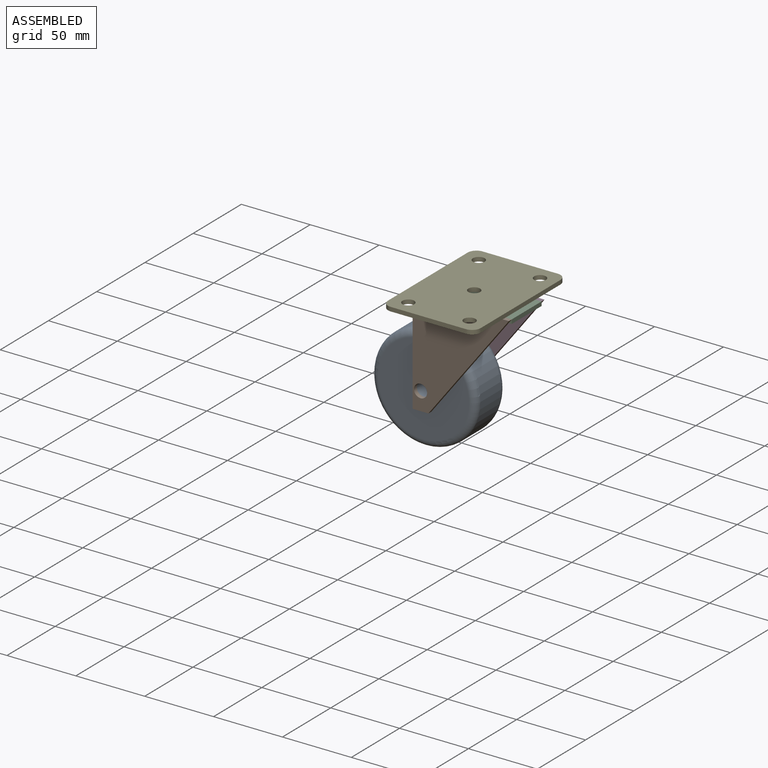
[diagram: assembled view]
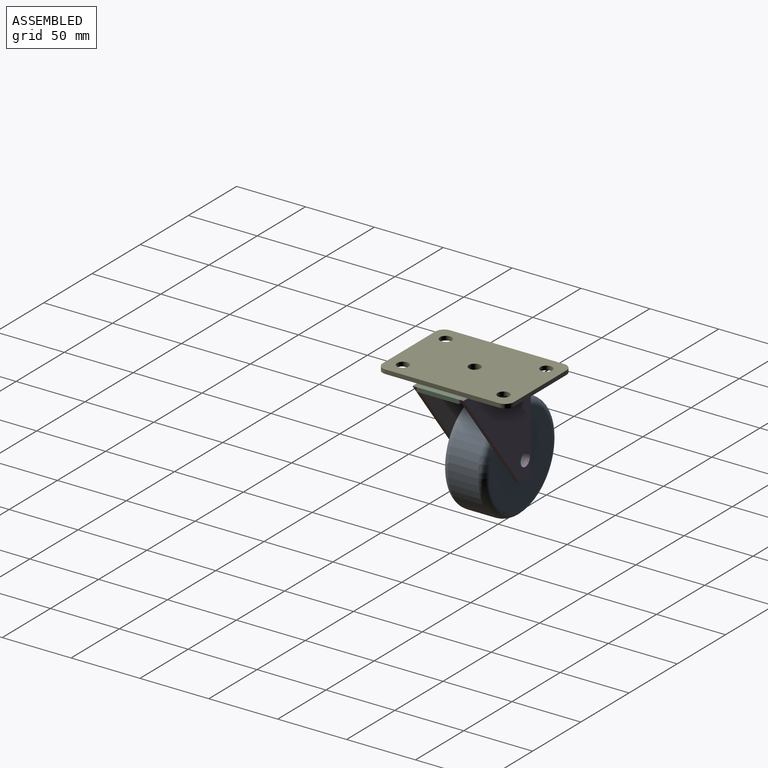
[diagram: assembled view, second angle]
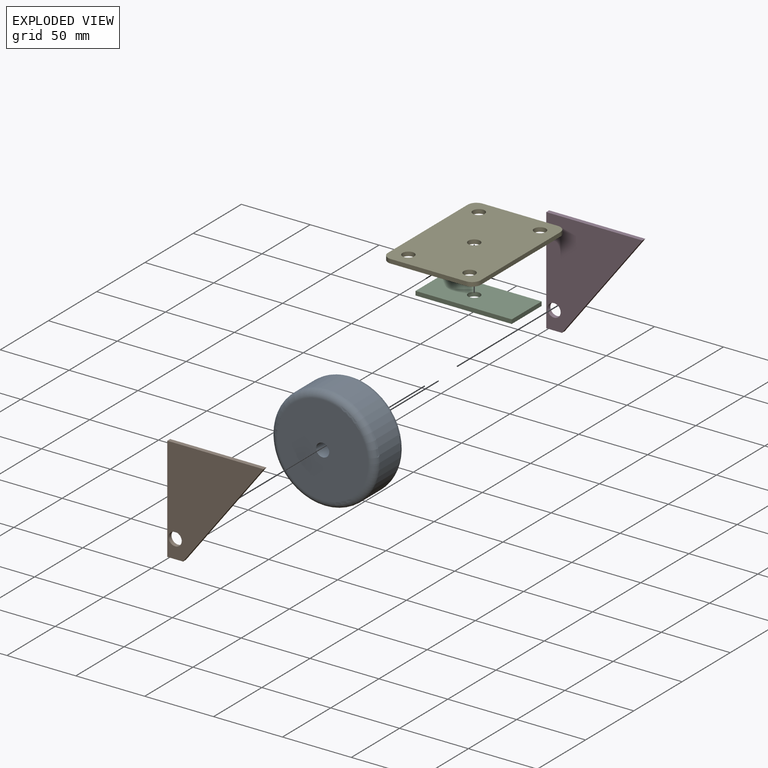
[diagram: exploded view]
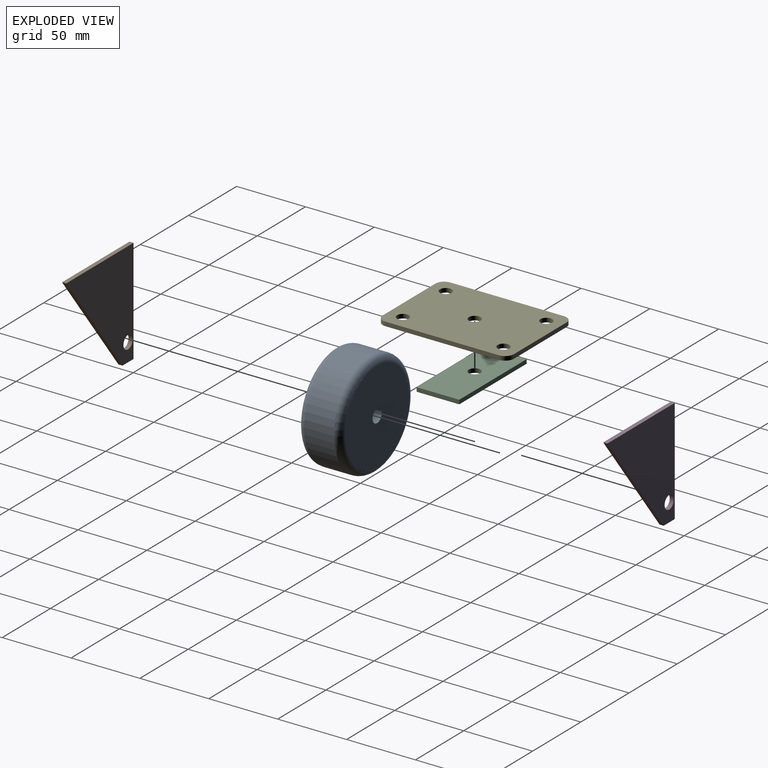
[diagram: exploded view, second angle]
ASSEMBLY  parts=5 mates=4
PART A: 6 faces, bbox 82.5x31x82.5 mm
  f0: cylinder r=38.1mm len=76.2mm, axis (0,1,0), area 4978.4mm2, adj f3,f4
  f1: plane 66.04x66.04mm, normal (0,-1,0), area 3354.1mm2, adj f3,f5
  f2: plane 66.04x66.04mm, normal (0,1,0), area 3354.1mm2, adj f4,f5
  f3: torus R=33.02mm, axis (0,-1,0), area 1817.7mm2, adj f0,f1
  f4: torus R=33.02mm, axis (0,-1,0), area 1817.7mm2, adj f0,f2
  f5: cylinder r=4.76mm len=30.96mm, axis (0,1,0), area 926.3mm2, adj f1,f2
PART B: 7 faces, bbox 3x69.9x76.2 mm
  f0: plane 11.43x3mm, normal (0,0,-1), area 34.3mm2, adj f1,f3,f4,f5
  f1: plane 76.2x3mm, normal (0,1,0), area 228.4mm2, adj f0,f2,f4,f5
  f2: plane 69.85x3mm, normal (0,0,1), area 209.4mm2, adj f1,f3,f4,f5
  f3: plane 76.2x58.42mm, normal (0,-0.79,-0.61), area 287.8mm2, adj f0,f2,f4,f5
  f4: plane 76.2x69.85mm, normal (1,0,0), area 3025.5mm2, adj f0,f1,f2,f3,f6
  f5: plane 76.2x69.85mm, normal (-1,0,0), area 3025.5mm2, adj f0,f1,f2,f3,f6
  f6: cylinder r=4.76mm len=9.53mm, axis (-1,0,0), area 89.7mm2, adj f4,f5
PART C: 7 faces, bbox 69.9x31x3 mm
  f0: plane 30.96x3mm, normal (1,0,0), area 92.8mm2, adj f1,f3,f4,f5
  f1: plane 69.85x3mm, normal (0,1,0), area 209.4mm2, adj f0,f2,f4,f5
  f2: plane 30.96x3mm, normal (-1,0,0), area 92.8mm2, adj f1,f3,f4,f5
  f3: plane 69.85x3mm, normal (0,-1,0), area 209.4mm2, adj f0,f2,f4,f5
  f4: plane 69.85x30.96mm, normal (0,0,1), area 2105.2mm2, adj f0,f1,f2,f3,f6
  f5: plane 69.85x30.96mm, normal (0,0,-1), area 2105.2mm2, adj f0,f1,f2,f3,f6
  f6: cylinder r=4.28mm len=8.56mm, axis (0,0,-1), area 80.6mm2, adj f4,f5
PART D: same geometry as B
PART E: 15 faces, bbox 67.3x95.3x3 mm
  f0: plane 54.61x3mm, normal (0,1,0), area 163.7mm2, adj f1,f7,f8,f9
  f1: cylinder r=6.35mm len=6.35mm, axis (0,0,-1), area 29.9mm2, adj f0,f2,f8,f9
  f2: plane 82.55x3mm, normal (-1,0,0), area 247.4mm2, adj f1,f3,f8,f9
  f3: cylinder r=6.35mm len=6.35mm, axis (0,0,-1), area 29.9mm2, adj f2,f4,f8,f9
  f4: plane 54.61x3mm, normal (0,-1,0), area 163.7mm2, adj f3,f5,f8,f9
  f5: cylinder r=6.35mm len=6.35mm, axis (0,0,-1), area 29.9mm2, adj f4,f6,f8,f9
  f6: plane 82.55x3mm, normal (1,0,0), area 247.4mm2, adj f5,f7,f8,f9
  f7: cylinder r=6.35mm len=6.35mm, axis (0,0,-1), area 29.9mm2, adj f0,f6,f8,f9
  f8: plane 95.25x67.31mm, normal (0,0,1), area 6088.9mm2, adj f0,f1,f2,f3,f4,f5,f6,f7
  f9: plane 95.25x67.31mm, normal (0,0,-1), area 6088.9mm2, adj f0,f1,f2,f3,f4,f5,f6,f7
  f10: cylinder r=4.28mm len=8.56mm, axis (0,0,-1), area 80.6mm2, adj f8,f9
  f11: cylinder r=4.28mm len=8.56mm, axis (0,0,-1), area 80.6mm2, adj f8,f9
  f12: cylinder r=4.28mm len=8.56mm, axis (0,0,-1), area 80.6mm2, adj f8,f9
  f13: cylinder r=4.28mm len=8.56mm, axis (0,0,-1), area 80.6mm2, adj f8,f9
  f14: cylinder r=4.28mm len=8.56mm, axis (0,0,-1), area 80.6mm2, adj f8,f9
PLACE A t=(-11.89,108.33,19.89)mm
PLACE B rot(axis=(0,0,1),90deg) t=(-17.61,74.38,6.69)mm
PLACE C t=(17.32,92.86,79.89)mm
PLACE D rot(axis=(0,0,1),90deg) t=(-17.61,108.34,6.69)mm
PLACE E t=(14.14,92.86,82.89)mm
MATE fastened C.f3 <-> B.f4  axis (0,-1,0) through (-17.61,77.37,82.89)mm
MATE fastened C.f1 <-> D.f5  axis (0,1,0) through (-17.61,108.34,82.89)mm
MATE revolute E.f14 <-> C.f6  axis (0,0,-1) through (14.14,92.86,82.89)mm
MATE revolute A.f0 <-> B.f6  axis (0,-1,0) through (-11.89,77.37,19.89)mm
